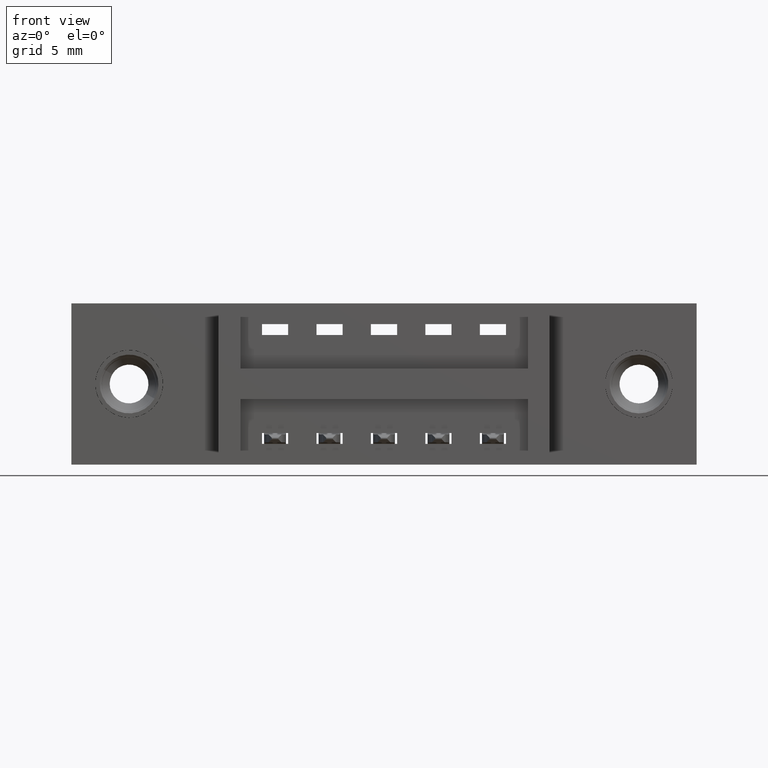
[diagram: clean part render]
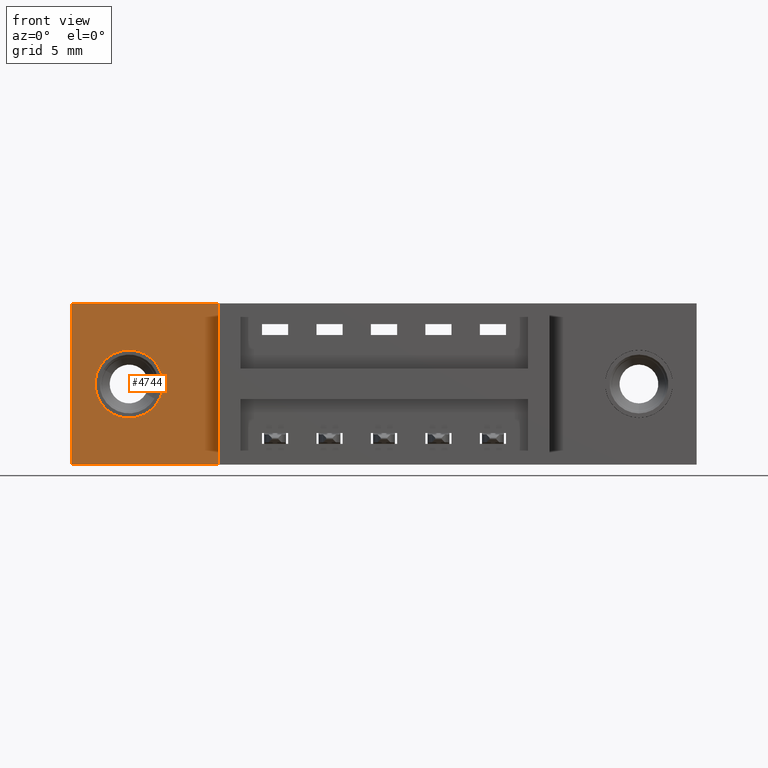
[diagram: same view with one face highlighted and labeled with its STEP entity id]
A machine part, front view. The second image highlights one B-rep face of the part: STEP entity #4744.
In plain terms, the highlighted planar face has unit normal (0, -1, 0).
Its self-contained STEP definition (entity closure, byte-faithful):
#139 = EDGE_LOOP ( 'NONE', ( #1001, #3061, #1802, #5364 ) ) ;
#401 = LINE ( 'NONE', #1751, #2272 ) ;
#520 = VECTOR ( 'NONE', #4035, 39.37007874015748143 ) ;
#590 = DIRECTION ( 'NONE',  ( 0.0000000000000000000, 0.0000000000000000000, -1.000000000000000000 ) ) ;
#896 = AXIS2_PLACEMENT_3D ( 'NONE', #8547, #8693, #590 ) ;
#1001 = ORIENTED_EDGE ( 'NONE', *, *, #2074, .T. ) ;
#1146 = ORIENTED_EDGE ( 'NONE', *, *, #6728, .F. ) ;
#1307 = AXIS2_PLACEMENT_3D ( 'NONE', #7482, #5750, #9453 ) ;
#1751 = CARTESIAN_POINT ( 'NONE',  ( 0.0000000000000000000, 0.1699999999999999845, 0.0000000000000000000 ) ) ;
#1802 = ORIENTED_EDGE ( 'NONE', *, *, #3514, .T. ) ;
#1845 = EDGE_LOOP ( 'NONE', ( #5327, #1146 ) ) ;
#2074 = EDGE_CURVE ( 'NONE', #9037, #8089, #6964, .T. ) ;
#2201 = CARTESIAN_POINT ( 'NONE',  ( 0.0000000000000000000, 0.1699999999999999845, -0.3700000000000001621 ) ) ;
#2238 = EDGE_CURVE ( 'NONE', #8089, #9481, #8210, .T. ) ;
#2272 = VECTOR ( 'NONE', #6218, 39.37007874015748143 ) ;
#2299 = CARTESIAN_POINT ( 'NONE',  ( 0.0000000000000000000, 0.1699999999999999845, 0.0000000000000000000 ) ) ;
#2302 = DIRECTION ( 'NONE',  ( 1.000000000000000000, 0.0000000000000000000, 0.0000000000000000000 ) ) ;
#2796 = VERTEX_POINT ( 'NONE', #4734 ) ;
#3029 = CIRCLE ( 'NONE', #8608, 0.07799999999999999989 ) ;
#3061 = ORIENTED_EDGE ( 'NONE', *, *, #2238, .T. ) ;
#3514 = EDGE_CURVE ( 'NONE', #9481, #3914, #5100, .T. ) ;
#3631 = CARTESIAN_POINT ( 'NONE',  ( 0.3375000000000001332, 0.1699999999999999845, 0.0000000000000000000 ) ) ;
#3857 = CARTESIAN_POINT ( 'NONE',  ( 0.3375000000000001332, 0.1699999999999999845, 0.0000000000000000000 ) ) ;
#3914 = VERTEX_POINT ( 'NONE', #3857 ) ;
#3987 = CARTESIAN_POINT ( 'NONE',  ( 0.0000000000000000000, 0.1699999999999999845, 0.0000000000000000000 ) ) ;
#4035 = DIRECTION ( 'NONE',  ( 0.0000000000000000000, 0.0000000000000000000, -1.000000000000000000 ) ) ;
#4185 = DIRECTION ( 'NONE',  ( 0.0000000000000000000, -1.000000000000000000, 0.0000000000000000000 ) ) ;
#4216 = VECTOR ( 'NONE', #5873, 39.37007874015748143 ) ;
#4420 = FACE_BOUND ( 'NONE', #1845, .T. ) ;
#4734 = CARTESIAN_POINT ( 'NONE',  ( 0.1325000000000002842, 0.1699999999999999845, -0.1069999999999951962 ) ) ;
#4744 = ADVANCED_FACE ( 'NONE', ( #4420, #5081 ), #6588, .T. ) ;
#5081 = FACE_OUTER_BOUND ( 'NONE', #139, .T. ) ;
#5100 = LINE ( 'NONE', #3631, #4216 ) ;
#5327 = ORIENTED_EDGE ( 'NONE', *, *, #7943, .F. ) ;
#5364 = ORIENTED_EDGE ( 'NONE', *, *, #7666, .T. ) ;
#5750 = DIRECTION ( 'NONE',  ( 0.0000000000000000000, -1.000000000000000000, 0.0000000000000000000 ) ) ;
#5873 = DIRECTION ( 'NONE',  ( -1.845843238962339506E-16, -0.0000000000000000000, 1.000000000000000000 ) ) ;
#6193 = VECTOR ( 'NONE', #2302, 39.37007874015748143 ) ;
#6218 = DIRECTION ( 'NONE',  ( -1.000000000000000000, -0.0000000000000000000, -0.0000000000000000000 ) ) ;
#6533 = VERTEX_POINT ( 'NONE', #6552 ) ;
#6552 = CARTESIAN_POINT ( 'NONE',  ( 0.1325000000000003120, 0.1699999999999999845, -0.2629999999999951821 ) ) ;
#6588 = PLANE ( 'NONE',  #1307 ) ;
#6728 = EDGE_CURVE ( 'NONE', #6533, #2796, #8771, .T. ) ;
#6964 = LINE ( 'NONE', #3987, #520 ) ;
#7152 = DIRECTION ( 'NONE',  ( 0.0000000000000000000, 0.0000000000000000000, -1.000000000000000000 ) ) ;
#7433 = CARTESIAN_POINT ( 'NONE',  ( 0.3375000000000002442, 0.1699999999999999845, -0.3700000000000001621 ) ) ;
#7482 = CARTESIAN_POINT ( 'NONE',  ( 0.0000000000000000000, 0.1699999999999999845, -0.3700000000000001621 ) ) ;
#7666 = EDGE_CURVE ( 'NONE', #3914, #9037, #401, .T. ) ;
#7943 = EDGE_CURVE ( 'NONE', #2796, #6533, #3029, .T. ) ;
#7975 = CARTESIAN_POINT ( 'NONE',  ( 0.1325000000000002842, 0.1699999999999999845, -0.1849999999999951961 ) ) ;
#8089 = VERTEX_POINT ( 'NONE', #9330 ) ;
#8210 = LINE ( 'NONE', #2201, #6193 ) ;
#8547 = CARTESIAN_POINT ( 'NONE',  ( 0.1325000000000002842, 0.1699999999999999845, -0.1849999999999951961 ) ) ;
#8608 = AXIS2_PLACEMENT_3D ( 'NONE', #7975, #4185, #7152 ) ;
#8693 = DIRECTION ( 'NONE',  ( 0.0000000000000000000, -1.000000000000000000, 0.0000000000000000000 ) ) ;
#8771 = CIRCLE ( 'NONE', #896, 0.07799999999999999989 ) ;
#9037 = VERTEX_POINT ( 'NONE', #2299 ) ;
#9330 = CARTESIAN_POINT ( 'NONE',  ( 0.0000000000000000000, 0.1699999999999999845, -0.3700000000000001621 ) ) ;
#9453 = DIRECTION ( 'NONE',  ( 0.0000000000000000000, -0.0000000000000000000, -1.000000000000000000 ) ) ;
#9481 = VERTEX_POINT ( 'NONE', #7433 ) ;